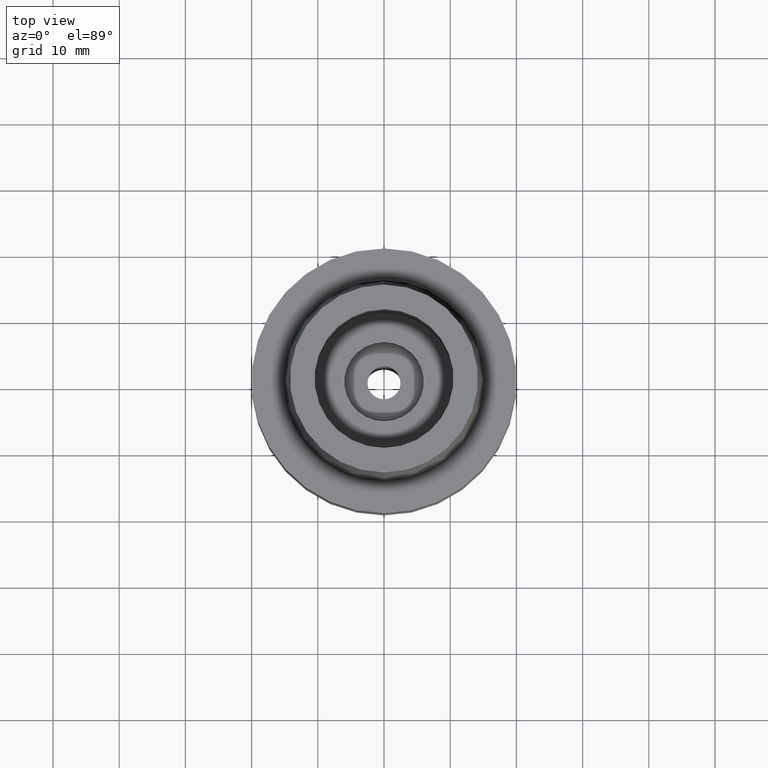
[diagram: clean part render]
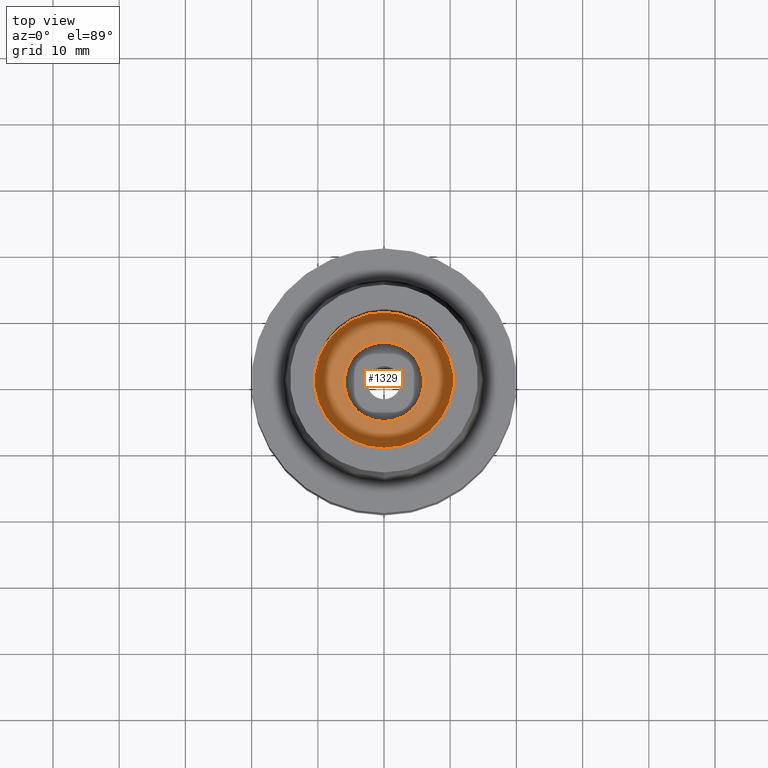
[diagram: same view with one face highlighted and labeled with its STEP entity id]
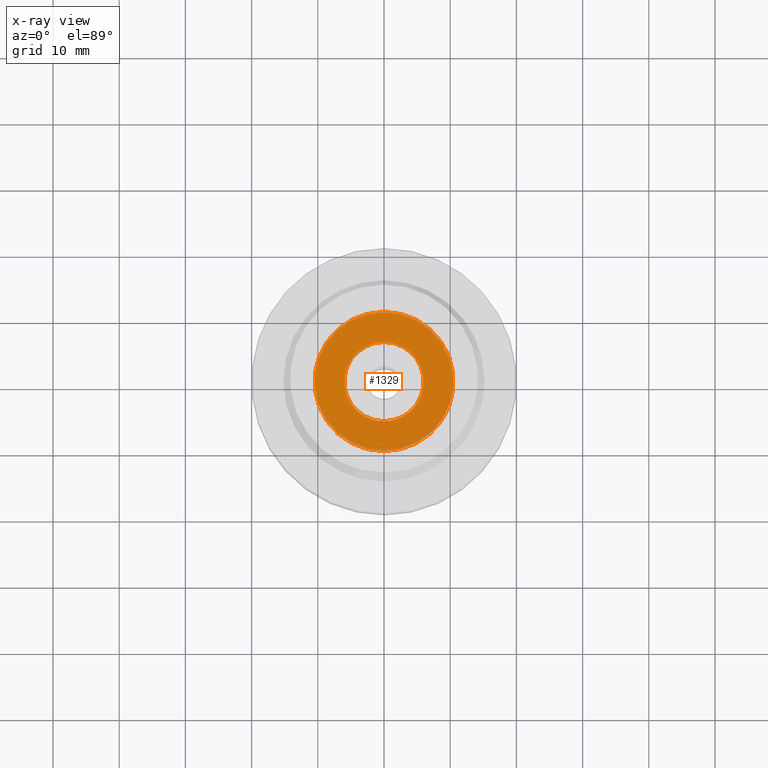
[diagram: x-ray of the same camera — body ghosted, the highlighted face saturated]
A machine part, top view. The second image highlights one B-rep face of the part: STEP entity #1329.
The next image is the same camera in x-ray: the body ghosted, the highlighted face saturated — about 4% of this face is hidden behind the body in this view.
In plain terms, the highlighted planar face has unit normal (0, 0, 1).
Its self-contained STEP definition (entity closure, byte-faithful):
#522=CARTESIAN_POINT('',(0.E0,0.E0,-7.95E0));
#523=DIRECTION('',(0.E0,0.E0,-1.E0));
#524=DIRECTION('',(0.E0,-1.E0,0.E0));
#525=AXIS2_PLACEMENT_3D('',#522,#523,#524);
#530=CARTESIAN_POINT('',(0.E0,0.E0,-7.95E0));
#531=DIRECTION('',(0.E0,0.E0,-1.E0));
#532=DIRECTION('',(0.E0,1.E0,0.E0));
#533=AXIS2_PLACEMENT_3D('',#530,#531,#532);
#538=CARTESIAN_POINT('',(0.E0,0.E0,-7.95E0));
#539=DIRECTION('',(0.E0,0.E0,1.E0));
#540=DIRECTION('',(0.E0,-1.E0,0.E0));
#541=AXIS2_PLACEMENT_3D('',#538,#539,#540);
#546=CARTESIAN_POINT('',(0.E0,0.E0,-7.95E0));
#547=DIRECTION('',(0.E0,0.E0,1.E0));
#548=DIRECTION('',(0.E0,1.E0,0.E0));
#549=AXIS2_PLACEMENT_3D('',#546,#547,#548);
#804=CARTESIAN_POINT('',(0.E0,6.E0,-7.95E0));
#805=VERTEX_POINT('',#804);
#806=CARTESIAN_POINT('',(0.E0,-6.E0,-7.95E0));
#807=VERTEX_POINT('',#806);
#808=CARTESIAN_POINT('',(0.E0,-1.05E1,-7.95E0));
#809=CARTESIAN_POINT('',(0.E0,1.05E1,-7.95E0));
#810=VERTEX_POINT('',#808);
#811=VERTEX_POINT('',#809);
#1314=CARTESIAN_POINT('',(0.E0,0.E0,-7.95E0));
#1315=DIRECTION('',(0.E0,0.E0,1.E0));
#1316=DIRECTION('',(0.E0,1.E0,0.E0));
#1317=AXIS2_PLACEMENT_3D('',#1314,#1315,#1316);
#1318=PLANE('',#1317);
#1320=ORIENTED_EDGE('',*,*,#1319,.T.);
#1322=ORIENTED_EDGE('',*,*,#1321,.T.);
#1323=EDGE_LOOP('',(#1320,#1322));
#1324=FACE_OUTER_BOUND('',#1323,.F.);
#1325=ORIENTED_EDGE('',*,*,#1307,.T.);
#1326=ORIENTED_EDGE('',*,*,#1296,.T.);
#1327=EDGE_LOOP('',(#1325,#1326));
#1328=FACE_BOUND('',#1327,.F.);
#526=CIRCLE('',#525,1.05E1);
#534=CIRCLE('',#533,1.05E1);
#542=CIRCLE('',#541,6.E0);
#550=CIRCLE('',#549,6.E0);
#1296=EDGE_CURVE('',#805,#807,#550,.T.);
#1307=EDGE_CURVE('',#807,#805,#542,.T.);
#1319=EDGE_CURVE('',#810,#811,#526,.T.);
#1321=EDGE_CURVE('',#811,#810,#534,.T.);
#1329=ADVANCED_FACE('',(#1324,#1328),#1318,.T.);